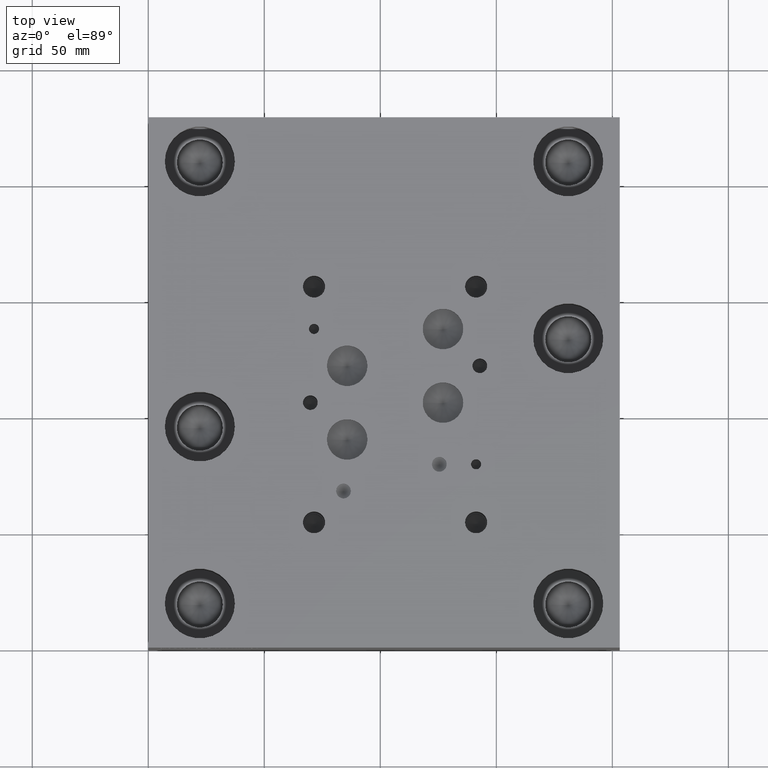
[diagram: clean part render]
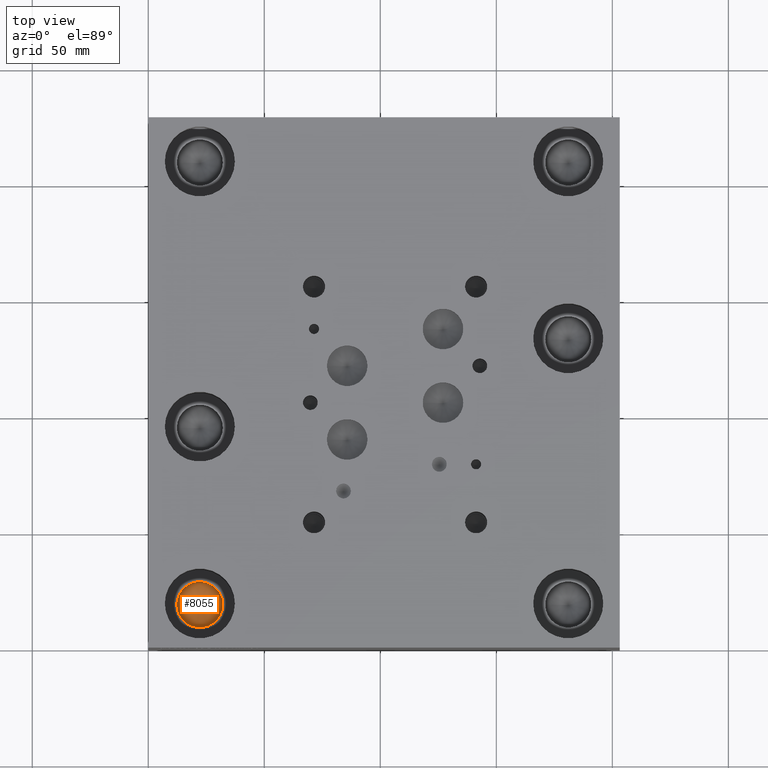
[diagram: same view with one face highlighted and labeled with its STEP entity id]
A machine part, top view. The second image highlights one B-rep face of the part: STEP entity #8055.
In plain terms, the highlighted conical surface has half-angle 60 deg.
Its self-contained STEP definition (entity closure, byte-faithful):
#159=CIRCLE('',#8512,9.9187);
#160=CIRCLE('',#8513,9.9187);
#278=CONICAL_SURFACE('',#8511,4.95935,1.0471975511966);
#919=FACE_OUTER_BOUND('',#1370,.T.);
#1370=EDGE_LOOP('',(#6798,#6799,#6800,#6801));
#2210=LINE('',#13334,#2997);
#2997=VECTOR('',#10174,4.95935);
#3706=VERTEX_POINT('',#13330);
#3707=VERTEX_POINT('',#13331);
#3708=VERTEX_POINT('',#13333);
#4781=EDGE_CURVE('',#3706,#3707,#159,.T.);
#4782=EDGE_CURVE('',#3707,#3708,#2210,.T.);
#4783=EDGE_CURVE('',#3707,#3706,#160,.T.);
#6798=ORIENTED_EDGE('',*,*,#4781,.T.);
#6799=ORIENTED_EDGE('',*,*,#4782,.T.);
#6800=ORIENTED_EDGE('',*,*,#4782,.F.);
#6801=ORIENTED_EDGE('',*,*,#4783,.T.);
#8055=ADVANCED_FACE('',(#919),#278,.F.);
#8511=AXIS2_PLACEMENT_3D('',#13329,#10170,#10171);
#8512=AXIS2_PLACEMENT_3D('',#13332,#10172,#10173);
#8513=AXIS2_PLACEMENT_3D('',#13335,#10175,#10176);
#10170=DIRECTION('center_axis',(0.,0.,1.));
#10171=DIRECTION('ref_axis',(1.,0.,0.));
#10172=DIRECTION('center_axis',(0.,0.,1.));
#10173=DIRECTION('ref_axis',(1.,0.,0.));
#10174=DIRECTION('',(0.866025403784439,1.06057523872491E-16,-0.5));
#10175=DIRECTION('center_axis',(0.,0.,1.));
#10176=DIRECTION('ref_axis',(1.,0.,0.));
#13329=CARTESIAN_POINT('Origin',(22.225,19.05,39.0351579424944));
#13330=CARTESIAN_POINT('',(32.1437,19.05,41.89844));
#13331=CARTESIAN_POINT('',(12.3063,19.05,41.89844));
#13332=CARTESIAN_POINT('Origin',(22.225,19.05,41.89844));
#13333=CARTESIAN_POINT('',(22.225,19.05,36.1718758849889));
#13334=CARTESIAN_POINT('',(17.26565,19.05,39.0351579424944));
#13335=CARTESIAN_POINT('Origin',(22.225,19.05,41.89844));